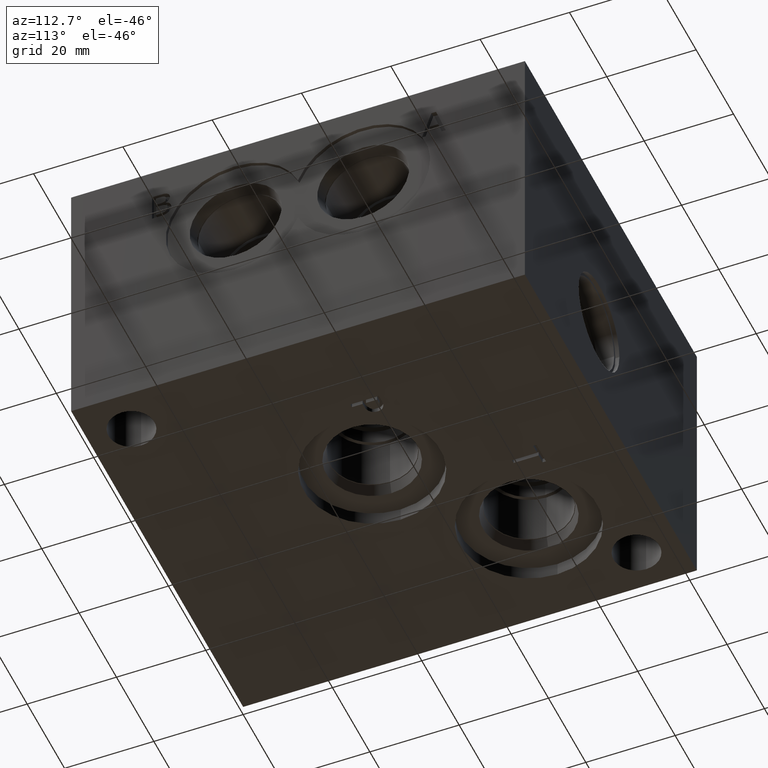
[diagram: clean part render]
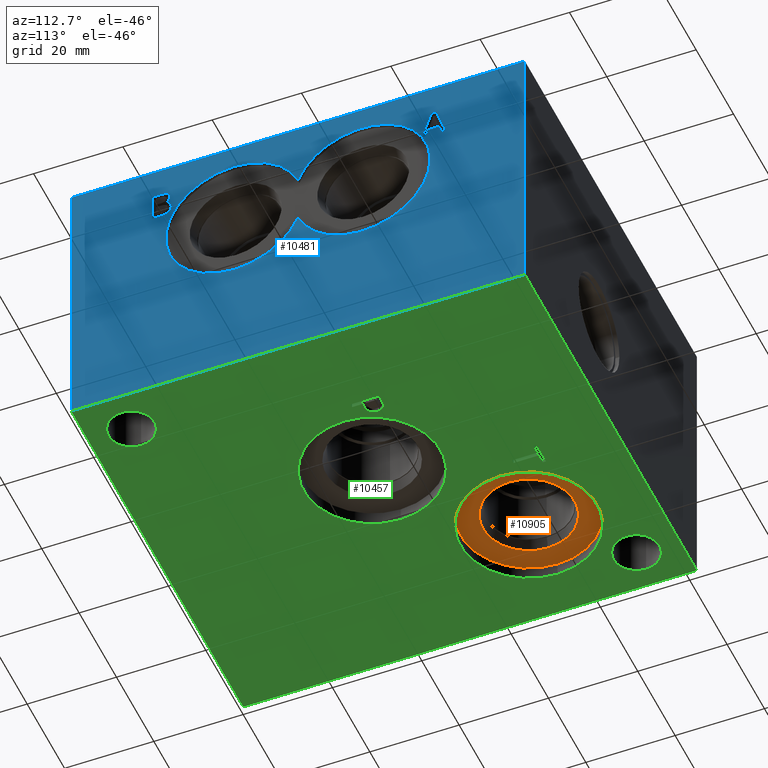
[diagram: same view with three faces highlighted in distinct colors, each labeled with its STEP entity id]
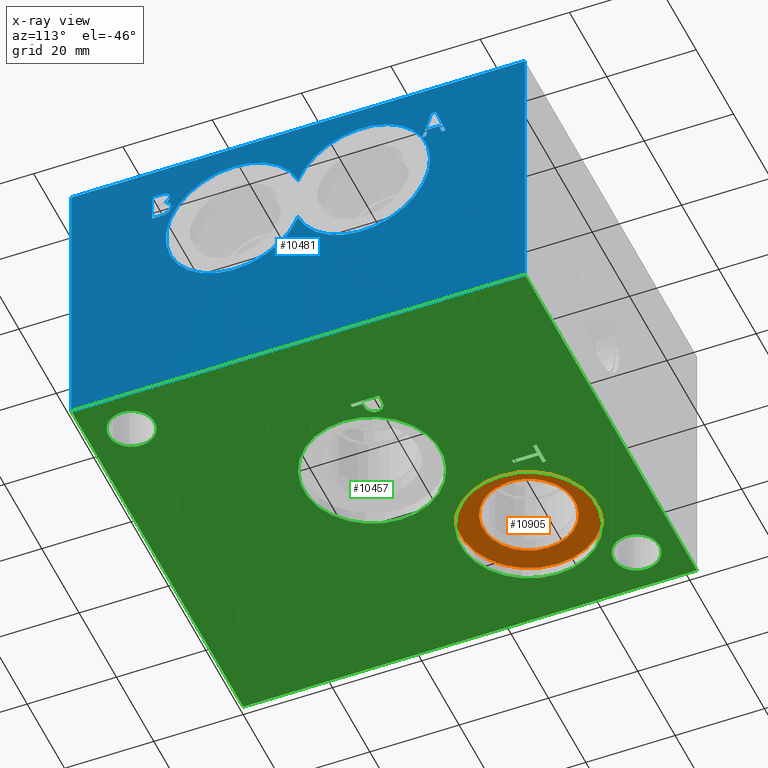
[diagram: x-ray of the same camera — body ghosted, the three highlighted faces saturated]
A machine part, auxiliary view with three faces highlighted in distinct colors.
The next image is the same camera in x-ray (body ghosted, the three faces saturated) — at least one of them is partly hidden behind the body in this view.
Their STEP definitions:

[orange] entity #10905 — the highlighted planar face has unit normal (0, 0, 1).
#120=FACE_BOUND('',#2120,.T.);
#439=PLANE('',#11379);
#1508=FACE_OUTER_BOUND('',#2119,.T.);
#2119=EDGE_LOOP('',(#9892,#9893));
#2120=EDGE_LOOP('',(#9894,#9895));
#2619=CIRCLE('',#11377,15.3162);
#2620=CIRCLE('',#11378,15.3162);
#2621=CIRCLE('',#11380,10.2997);
#2622=CIRCLE('',#11381,10.2997);
#5646=VERTEX_POINT('',#18600);
#5647=VERTEX_POINT('',#18602);
#5648=VERTEX_POINT('',#18606);
#5649=VERTEX_POINT('',#18607);
#7112=EDGE_CURVE('',#5646,#5647,#2619,.T.);
#7113=EDGE_CURVE('',#5647,#5646,#2620,.T.);
#7114=EDGE_CURVE('',#5648,#5649,#2621,.T.);
#7115=EDGE_CURVE('',#5649,#5648,#2622,.T.);
#9892=ORIENTED_EDGE('',*,*,#7113,.F.);
#9893=ORIENTED_EDGE('',*,*,#7112,.F.);
#9894=ORIENTED_EDGE('',*,*,#7114,.T.);
#9895=ORIENTED_EDGE('',*,*,#7115,.T.);
#10905=ADVANCED_FACE('',(#1508,#120),#439,.F.);
#11377=AXIS2_PLACEMENT_3D('',#18603,#13278,#13279);
#11378=AXIS2_PLACEMENT_3D('',#18604,#13280,#13281);
#11379=AXIS2_PLACEMENT_3D('',#18605,#13282,#13283);
#11380=AXIS2_PLACEMENT_3D('',#18608,#13284,#13285);
#11381=AXIS2_PLACEMENT_3D('',#18609,#13286,#13287);
#13278=DIRECTION('center_axis',(0.,0.,1.));
#13279=DIRECTION('ref_axis',(1.,0.,0.));
#13280=DIRECTION('center_axis',(0.,0.,1.));
#13281=DIRECTION('ref_axis',(1.,0.,0.));
#13282=DIRECTION('center_axis',(0.,0.,1.));
#13283=DIRECTION('ref_axis',(1.,0.,0.));
#13284=DIRECTION('center_axis',(0.,0.,1.));
#13285=DIRECTION('ref_axis',(1.,0.,0.));
#13286=DIRECTION('center_axis',(0.,0.,1.));
#13287=DIRECTION('ref_axis',(1.,0.,0.));
#18600=CARTESIAN_POINT('',(10.0838,74.5998,3.048));
#18602=CARTESIAN_POINT('',(40.7162,74.5998,3.048));
#18603=CARTESIAN_POINT('Origin',(25.4,74.5998,3.048));
#18604=CARTESIAN_POINT('Origin',(25.4,74.5998,3.048));
#18605=CARTESIAN_POINT('Origin',(35.6997,74.5998,3.048));
#18606=CARTESIAN_POINT('',(35.6997,74.5998,3.048));
#18607=CARTESIAN_POINT('',(15.1003,74.5998,3.048));
#18608=CARTESIAN_POINT('Origin',(25.4,74.5998,3.048));
#18609=CARTESIAN_POINT('Origin',(25.4,74.5998,3.048));

[blue] entity #10481 — the highlighted planar face has unit normal (1, 0, 0).
#80=FACE_BOUND('',#1656,.T.);
#81=FACE_BOUND('',#1657,.T.);
#180=PLANE('',#11061);
#1084=FACE_OUTER_BOUND('',#1655,.T.);
#1655=EDGE_LOOP('',(#7560,#7561,#7562,#7563));
#1656=EDGE_LOOP('',(#7564,#7565,#7566,#7567,#7568,#7569,#7570,#7571,#7572,
#7573,#7574));
#1657=EDGE_LOOP('',(#7575,#7576,#7577,#7578,#7579,#7580,#7581,#7582,#7583,
#7584));
#2263=B_SPLINE_CURVE_WITH_KNOTS('',2,(#14242,#14243,#14244,#14245),
 .UNSPECIFIED.,.F.,.F.,(3,1,3),(0.,1.,2.),.UNSPECIFIED.);
#2264=B_SPLINE_CURVE_WITH_KNOTS('',2,(#14247,#14248,#14249,#14250),
 .UNSPECIFIED.,.F.,.F.,(3,1,3),(0.,1.,2.),.UNSPECIFIED.);
#2265=B_SPLINE_CURVE_WITH_KNOTS('',2,(#14252,#14253,#14254,#14255),
 .UNSPECIFIED.,.F.,.F.,(3,1,3),(0.,1.,2.),.UNSPECIFIED.);
#2266=B_SPLINE_CURVE_WITH_KNOTS('',2,(#14263,#14264,#14265,#14266),
 .UNSPECIFIED.,.F.,.F.,(3,1,3),(0.,1.,2.),.UNSPECIFIED.);
#2267=B_SPLINE_CURVE_WITH_KNOTS('',2,(#14268,#14269,#14270,#14271),
 .UNSPECIFIED.,.F.,.F.,(3,1,3),(0.,1.,2.),.UNSPECIFIED.);
#2268=B_SPLINE_CURVE_WITH_KNOTS('',2,(#14273,#14274,#14275,#14276),
 .UNSPECIFIED.,.F.,.F.,(3,1,3),(0.,1.,2.),.UNSPECIFIED.);
#2579=CIRCLE('',#11057,15.3162);
#2580=CIRCLE('',#11059,15.3162);
#2582=CIRCLE('',#11062,15.3162);
#2810=LINE('',#14084,#3810);
#2839=LINE('',#14157,#3839);
#2852=LINE('',#14183,#3852);
#2855=LINE('',#14189,#3855);
#2858=LINE('',#14195,#3858);
#2861=LINE('',#14201,#3861);
#2864=LINE('',#14207,#3864);
#2867=LINE('',#14213,#3867);
#2870=LINE('',#14218,#3870);
#2874=LINE('',#14235,#3874);
#2875=LINE('',#14237,#3875);
#2876=LINE('',#14238,#3876);
#2877=LINE('',#14257,#3877);
#2878=LINE('',#14259,#3878);
#2879=LINE('',#14261,#3879);
#2880=LINE('',#14277,#3880);
#3810=VECTOR('',#11691,10.);
#3839=VECTOR('',#11752,10.);
#3852=VECTOR('',#11773,10.);
#3855=VECTOR('',#11778,10.);
#3858=VECTOR('',#11783,10.);
#3861=VECTOR('',#11788,10.);
#3864=VECTOR('',#11793,10.);
#3867=VECTOR('',#11798,10.);
#3870=VECTOR('',#11803,10.);
#3874=VECTOR('',#11823,10.);
#3875=VECTOR('',#11824,10.);
#3876=VECTOR('',#11825,10.);
#3877=VECTOR('',#11828,10.);
#3878=VECTOR('',#11829,10.);
#3879=VECTOR('',#11830,10.);
#3880=VECTOR('',#11831,10.);
#4811=VERTEX_POINT('',#14078);
#4813=VERTEX_POINT('',#14082);
#4840=VERTEX_POINT('',#14154);
#4841=VERTEX_POINT('',#14156);
#4849=VERTEX_POINT('',#14180);
#4850=VERTEX_POINT('',#14182);
#4852=VERTEX_POINT('',#14188);
#4854=VERTEX_POINT('',#14194);
#4856=VERTEX_POINT('',#14200);
#4858=VERTEX_POINT('',#14206);
#4860=VERTEX_POINT('',#14212);
#4863=VERTEX_POINT('',#14224);
#4864=VERTEX_POINT('',#14228);
#4866=VERTEX_POINT('',#14234);
#4867=VERTEX_POINT('',#14236);
#4868=VERTEX_POINT('',#14240);
#4869=VERTEX_POINT('',#14241);
#4870=VERTEX_POINT('',#14246);
#4871=VERTEX_POINT('',#14251);
#4872=VERTEX_POINT('',#14256);
#4873=VERTEX_POINT('',#14258);
#4874=VERTEX_POINT('',#14260);
#4875=VERTEX_POINT('',#14262);
#4876=VERTEX_POINT('',#14267);
#4877=VERTEX_POINT('',#14272);
#5868=EDGE_CURVE('',#4811,#4813,#2810,.T.);
#5903=EDGE_CURVE('',#4841,#4840,#2839,.T.);
#5916=EDGE_CURVE('',#4850,#4849,#2852,.T.);
#5919=EDGE_CURVE('',#4852,#4850,#2855,.T.);
#5922=EDGE_CURVE('',#4854,#4852,#2858,.T.);
#5925=EDGE_CURVE('',#4856,#4854,#2861,.T.);
#5928=EDGE_CURVE('',#4858,#4856,#2864,.T.);
#5931=EDGE_CURVE('',#4860,#4858,#2867,.T.);
#5934=EDGE_CURVE('',#4840,#4860,#2870,.T.);
#5938=EDGE_CURVE('',#4849,#4863,#2579,.T.);
#5939=EDGE_CURVE('',#4864,#4841,#2580,.T.);
#5942=EDGE_CURVE('',#4813,#4866,#2874,.T.);
#5943=EDGE_CURVE('',#4867,#4866,#2875,.T.);
#5944=EDGE_CURVE('',#4811,#4867,#2876,.T.);
#5945=EDGE_CURVE('',#4863,#4864,#2582,.T.);
#5946=EDGE_CURVE('',#4868,#4869,#2263,.T.);
#5947=EDGE_CURVE('',#4869,#4870,#2264,.T.);
#5948=EDGE_CURVE('',#4870,#4871,#2265,.T.);
#5949=EDGE_CURVE('',#4871,#4872,#2877,.T.);
#5950=EDGE_CURVE('',#4872,#4873,#2878,.T.);
#5951=EDGE_CURVE('',#4873,#4874,#2879,.T.);
#5952=EDGE_CURVE('',#4874,#4875,#2266,.T.);
#5953=EDGE_CURVE('',#4875,#4876,#2267,.T.);
#5954=EDGE_CURVE('',#4876,#4877,#2268,.T.);
#5955=EDGE_CURVE('',#4877,#4868,#2880,.T.);
#7560=ORIENTED_EDGE('',*,*,#5868,.T.);
#7561=ORIENTED_EDGE('',*,*,#5942,.T.);
#7562=ORIENTED_EDGE('',*,*,#5943,.F.);
#7563=ORIENTED_EDGE('',*,*,#5944,.F.);
#7564=ORIENTED_EDGE('',*,*,#5903,.T.);
#7565=ORIENTED_EDGE('',*,*,#5934,.T.);
#7566=ORIENTED_EDGE('',*,*,#5931,.T.);
#7567=ORIENTED_EDGE('',*,*,#5928,.T.);
#7568=ORIENTED_EDGE('',*,*,#5925,.T.);
#7569=ORIENTED_EDGE('',*,*,#5922,.T.);
#7570=ORIENTED_EDGE('',*,*,#5919,.T.);
#7571=ORIENTED_EDGE('',*,*,#5916,.T.);
#7572=ORIENTED_EDGE('',*,*,#5938,.T.);
#7573=ORIENTED_EDGE('',*,*,#5945,.T.);
#7574=ORIENTED_EDGE('',*,*,#5939,.T.);
#7575=ORIENTED_EDGE('',*,*,#5946,.T.);
#7576=ORIENTED_EDGE('',*,*,#5947,.T.);
#7577=ORIENTED_EDGE('',*,*,#5948,.T.);
#7578=ORIENTED_EDGE('',*,*,#5949,.T.);
#7579=ORIENTED_EDGE('',*,*,#5950,.T.);
#7580=ORIENTED_EDGE('',*,*,#5951,.T.);
#7581=ORIENTED_EDGE('',*,*,#5952,.T.);
#7582=ORIENTED_EDGE('',*,*,#5953,.T.);
#7583=ORIENTED_EDGE('',*,*,#5954,.T.);
#7584=ORIENTED_EDGE('',*,*,#5955,.T.);
#10481=ADVANCED_FACE('',(#1084,#80,#81),#180,.T.);
#11057=AXIS2_PLACEMENT_3D('',#14226,#11812,#11813);
#11059=AXIS2_PLACEMENT_3D('',#14229,#11816,#11817);
#11061=AXIS2_PLACEMENT_3D('',#14233,#11821,#11822);
#11062=AXIS2_PLACEMENT_3D('',#14239,#11826,#11827);
#11691=DIRECTION('',(0.,1.,0.));
#11752=DIRECTION('',(0.,0.319451166674567,0.947602739606771));
#11773=DIRECTION('',(0.,-1.,0.));
#11778=DIRECTION('',(0.,-0.308774363938379,-0.951135317488763));
#11783=DIRECTION('',(0.,-1.,0.));
#11788=DIRECTION('',(0.,-0.308774363938375,0.951135317488764));
#11793=DIRECTION('',(0.,-1.,0.));
#11798=DIRECTION('',(0.,0.319451166674567,-0.947602739606771));
#11803=DIRECTION('',(0.,1.,0.));
#11812=DIRECTION('center_axis',(-1.,0.,0.));
#11813=DIRECTION('ref_axis',(0.,0.,-1.));
#11816=DIRECTION('center_axis',(-1.,0.,0.));
#11817=DIRECTION('ref_axis',(0.,0.,-1.));
#11821=DIRECTION('center_axis',(1.,0.,0.));
#11822=DIRECTION('ref_axis',(0.,1.,0.));
#11823=DIRECTION('',(0.,0.,1.));
#11824=DIRECTION('',(0.,1.,0.));
#11825=DIRECTION('',(0.,0.,1.));
#11826=DIRECTION('center_axis',(-1.,0.,0.));
#11827=DIRECTION('ref_axis',(0.,0.,-1.));
#11828=DIRECTION('',(0.,-1.,0.));
#11829=DIRECTION('',(0.,0.,1.));
#11830=DIRECTION('',(0.,1.,0.));
#11831=DIRECTION('',(0.,0.,-1.));
#14078=CARTESIAN_POINT('',(92.075,0.,0.));
#14082=CARTESIAN_POINT('',(92.075,101.6,0.));
#14084=CARTESIAN_POINT('',(92.075,0.,0.));
#14154=CARTESIAN_POINT('',(92.075,80.6807637448056,56.3562499046326));
#14156=CARTESIAN_POINT('',(92.075,78.5696101686727,50.0938376138923));
#14157=CARTESIAN_POINT('',(92.075,66.9638467196177,15.6671258443397));
#14180=CARTESIAN_POINT('',(92.075,78.6162624704092,50.00625));
#14182=CARTESIAN_POINT('',(92.075,79.39429698941,50.00625));
#14183=CARTESIAN_POINT('',(92.075,39.697148494705,50.00625));
#14188=CARTESIAN_POINT('',(92.075,79.9706340958272,51.7815741224459));
#14189=CARTESIAN_POINT('',(92.075,68.5546027427374,16.6161204008744));
#14194=CARTESIAN_POINT('',(92.075,82.3943374629925,51.7815741224459));
#14195=CARTESIAN_POINT('',(92.075,41.1971687314962,51.7815741224459));
#14200=CARTESIAN_POINT('',(92.075,82.9706745694097,50.00625));
#14201=CARTESIAN_POINT('',(92.075,86.3584686478071,39.5706343120792));
#14206=CARTESIAN_POINT('',(92.075,83.8609095641434,50.00625));
#14207=CARTESIAN_POINT('',(92.075,41.9304547820717,50.00625));
#14212=CARTESIAN_POINT('',(92.075,81.7202288831652,56.3562499046326));
#14213=CARTESIAN_POINT('',(92.075,86.0803722308472,43.4225554550181));
#14218=CARTESIAN_POINT('',(92.075,40.3403818724028,56.3562499046326));
#14224=CARTESIAN_POINT('',(92.075,50.7873,37.3313467574691));
#14226=CARTESIAN_POINT('Origin',(92.075,65.0748,42.8498));
#14228=CARTESIAN_POINT('',(92.075,50.7873,48.3682532425309));
#14229=CARTESIAN_POINT('Origin',(92.075,65.0748,42.8498));
#14233=CARTESIAN_POINT('Origin',(92.075,0.,0.));
#14234=CARTESIAN_POINT('',(92.075,101.6,63.5));
#14235=CARTESIAN_POINT('',(92.075,101.6,0.));
#14236=CARTESIAN_POINT('',(92.075,0.,63.5));
#14237=CARTESIAN_POINT('',(92.075,0.,63.5));
#14238=CARTESIAN_POINT('',(92.075,0.,0.));
#14239=CARTESIAN_POINT('Origin',(92.075,36.4998,42.8498));
#14240=CARTESIAN_POINT('',(92.075,21.2241287927767,53.5363147768055));
#14241=CARTESIAN_POINT('',(92.075,22.4128240747622,51.9565336011797));
#14242=CARTESIAN_POINT('Ctrl Pts',(92.075,21.2241287927767,53.5363147768055));
#14243=CARTESIAN_POINT('Ctrl Pts',(92.075,21.7901741651507,53.381938766158));
#14244=CARTESIAN_POINT('Ctrl Pts',(92.075,22.4128240747622,52.5637459097264));
#14245=CARTESIAN_POINT('Ctrl Pts',(92.075,22.4128240747622,51.9565336011797));
#14246=CARTESIAN_POINT('',(92.075,21.7541530959996,50.5208367021582));
#14247=CARTESIAN_POINT('Ctrl Pts',(92.075,22.4128240747622,51.9565336011797));
#14248=CARTESIAN_POINT('Ctrl Pts',(92.075,22.4128240747622,51.4831138351941));
#14249=CARTESIAN_POINT('Ctrl Pts',(92.075,22.0526133832514,50.757546585151));
#14250=CARTESIAN_POINT('Ctrl Pts',(92.075,21.7541530959996,50.5208367021582));
#14251=CARTESIAN_POINT('',(92.075,19.9273703033379,50.00625));
#14252=CARTESIAN_POINT('Ctrl Pts',(92.075,21.7541530959996,50.5208367021582));
#14253=CARTESIAN_POINT('Ctrl Pts',(92.075,21.3939424044889,50.2429598829928));
#14254=CARTESIAN_POINT('Ctrl Pts',(92.075,20.5757495480573,50.00625));
#14255=CARTESIAN_POINT('Ctrl Pts',(92.075,19.9273703033379,50.00625));
#14256=CARTESIAN_POINT('',(92.075,18.1057333776978,50.00625));
#14257=CARTESIAN_POINT('',(92.075,9.96368515166896,50.00625));
#14258=CARTESIAN_POINT('',(92.075,18.1057333776978,56.3562499046326));
#14259=CARTESIAN_POINT('',(92.075,18.1057333776978,25.003125));
#14260=CARTESIAN_POINT('',(92.075,19.7884318937552,56.3562499046326));
#14261=CARTESIAN_POINT('',(92.075,9.05286668884889,56.3562499046326));
#14262=CARTESIAN_POINT('',(92.075,21.4556928087479,56.0989565535535));
#14263=CARTESIAN_POINT('Ctrl Pts',(92.075,19.7884318937552,56.3562499046326));
#14264=CARTESIAN_POINT('Ctrl Pts',(92.075,20.4676863406041,56.3562499046326));
#14265=CARTESIAN_POINT('Ctrl Pts',(92.075,21.1469407874529,56.2687701652657));
#14266=CARTESIAN_POINT('Ctrl Pts',(92.075,21.4556928087479,56.0989565535535));
#14267=CARTESIAN_POINT('',(92.075,22.1143637875104,54.9256988726327));
#14268=CARTESIAN_POINT('Ctrl Pts',(92.075,21.4556928087479,56.0989565535535));
#14269=CARTESIAN_POINT('Ctrl Pts',(92.075,21.8004658991939,55.9188512077981));
#14270=CARTESIAN_POINT('Ctrl Pts',(92.075,22.1143637875104,55.3270765003161));
#14271=CARTESIAN_POINT('Ctrl Pts',(92.075,22.1143637875104,54.9256988726327));
#14272=CARTESIAN_POINT('',(92.075,21.2241287927767,53.567189978935));
#14273=CARTESIAN_POINT('Ctrl Pts',(92.075,22.1143637875104,54.9256988726327));
#14274=CARTESIAN_POINT('Ctrl Pts',(92.075,22.1143637875104,54.478008441755));
#14275=CARTESIAN_POINT('Ctrl Pts',(92.075,21.6409440215248,53.7678787927767));
#14276=CARTESIAN_POINT('Ctrl Pts',(92.075,21.2241287927767,53.567189978935));
#14277=CARTESIAN_POINT('',(92.075,21.2241287927767,26.7835949894675));

[green] entity #10457 — the highlighted planar face has unit normal (0, 0, 1).
#73=FACE_BOUND('',#1625,.T.);
#74=FACE_BOUND('',#1626,.T.);
#75=FACE_BOUND('',#1627,.T.);
#76=FACE_BOUND('',#1628,.T.);
#77=FACE_BOUND('',#1629,.T.);
#78=FACE_BOUND('',#1630,.T.);
#158=PLANE('',#11027);
#1060=FACE_OUTER_BOUND('',#1624,.T.);
#1624=EDGE_LOOP('',(#7426,#7427,#7428,#7429));
#1625=EDGE_LOOP('',(#7430));
#1626=EDGE_LOOP('',(#7431));
#1627=EDGE_LOOP('',(#7432,#7433));
#1628=EDGE_LOOP('',(#7434,#7435));
#1629=EDGE_LOOP('',(#7436,#7437,#7438,#7439,#7440,#7441,#7442,#7443));
#1630=EDGE_LOOP('',(#7444,#7445,#7446,#7447,#7448,#7449,#7450,#7451,#7452));
#2255=B_SPLINE_CURVE_WITH_KNOTS('',2,(#13979,#13980,#13981,#13982),
 .UNSPECIFIED.,.F.,.F.,(3,1,3),(0.,1.,2.),.UNSPECIFIED.);
#2257=B_SPLINE_CURVE_WITH_KNOTS('',2,(#14000,#14001,#14002,#14003),
 .UNSPECIFIED.,.F.,.F.,(3,1,3),(0.,1.,2.),.UNSPECIFIED.);
#2259=B_SPLINE_CURVE_WITH_KNOTS('',2,(#14049,#14050,#14051,#14052),
 .UNSPECIFIED.,.F.,.F.,(3,1,3),(0.,1.,2.),.UNSPECIFIED.);
#2261=B_SPLINE_CURVE_WITH_KNOTS('',2,(#14067,#14068,#14069,#14070),
 .UNSPECIFIED.,.F.,.F.,(3,1,3),(0.,1.,2.),.UNSPECIFIED.);
#2572=CIRCLE('',#11028,5.1562);
#2573=CIRCLE('',#11029,5.1562);
#2574=CIRCLE('',#11030,15.3162);
#2575=CIRCLE('',#11031,15.3162);
#2576=CIRCLE('',#11032,15.3162);
#2577=CIRCLE('',#11033,15.3162);
#2791=LINE('',#14012,#3791);
#2794=LINE('',#14018,#3794);
#2797=LINE('',#14024,#3797);
#2800=LINE('',#14030,#3800);
#2803=LINE('',#14036,#3803);
#2807=LINE('',#14079,#3807);
#2808=LINE('',#14081,#3808);
#2809=LINE('',#14083,#3809);
#2810=LINE('',#14084,#3810);
#2811=LINE('',#14099,#3811);
#2812=LINE('',#14101,#3812);
#2813=LINE('',#14103,#3813);
#2814=LINE('',#14105,#3814);
#2815=LINE('',#14107,#3815);
#2816=LINE('',#14109,#3816);
#2817=LINE('',#14111,#3817);
#2818=LINE('',#14112,#3818);
#3791=VECTOR('',#11660,10.);
#3794=VECTOR('',#11665,10.);
#3797=VECTOR('',#11670,10.);
#3800=VECTOR('',#11675,10.);
#3803=VECTOR('',#11680,10.);
#3807=VECTOR('',#11688,10.);
#3808=VECTOR('',#11689,10.);
#3809=VECTOR('',#11690,10.);
#3810=VECTOR('',#11691,10.);
#3811=VECTOR('',#11704,10.);
#3812=VECTOR('',#11705,10.);
#3813=VECTOR('',#11706,10.);
#3814=VECTOR('',#11707,10.);
#3815=VECTOR('',#11708,10.);
#3816=VECTOR('',#11709,10.);
#3817=VECTOR('',#11710,10.);
#3818=VECTOR('',#11711,10.);
#4792=VERTEX_POINT('',#13977);
#4793=VERTEX_POINT('',#13978);
#4796=VERTEX_POINT('',#13999);
#4798=VERTEX_POINT('',#14011);
#4800=VERTEX_POINT('',#14017);
#4802=VERTEX_POINT('',#14023);
#4804=VERTEX_POINT('',#14029);
#4806=VERTEX_POINT('',#14035);
#4808=VERTEX_POINT('',#14048);
#4810=VERTEX_POINT('',#14077);
#4811=VERTEX_POINT('',#14078);
#4812=VERTEX_POINT('',#14080);
#4813=VERTEX_POINT('',#14082);
#4814=VERTEX_POINT('',#14085);
#4815=VERTEX_POINT('',#14087);
#4816=VERTEX_POINT('',#14089);
#4817=VERTEX_POINT('',#14090);
#4818=VERTEX_POINT('',#14093);
#4819=VERTEX_POINT('',#14094);
#4820=VERTEX_POINT('',#14097);
#4821=VERTEX_POINT('',#14098);
#4822=VERTEX_POINT('',#14100);
#4823=VERTEX_POINT('',#14102);
#4824=VERTEX_POINT('',#14104);
#4825=VERTEX_POINT('',#14106);
#4826=VERTEX_POINT('',#14108);
#4827=VERTEX_POINT('',#14110);
#5838=EDGE_CURVE('',#4792,#4793,#2255,.T.);
#5842=EDGE_CURVE('',#4796,#4792,#2257,.T.);
#5845=EDGE_CURVE('',#4798,#4796,#2791,.T.);
#5848=EDGE_CURVE('',#4800,#4798,#2794,.T.);
#5851=EDGE_CURVE('',#4802,#4800,#2797,.T.);
#5854=EDGE_CURVE('',#4804,#4802,#2800,.T.);
#5857=EDGE_CURVE('',#4806,#4804,#2803,.T.);
#5860=EDGE_CURVE('',#4808,#4806,#2259,.T.);
#5863=EDGE_CURVE('',#4793,#4808,#2261,.T.);
#5865=EDGE_CURVE('',#4810,#4811,#2807,.T.);
#5866=EDGE_CURVE('',#4812,#4810,#2808,.T.);
#5867=EDGE_CURVE('',#4813,#4812,#2809,.T.);
#5868=EDGE_CURVE('',#4811,#4813,#2810,.T.);
#5869=EDGE_CURVE('',#4814,#4814,#2572,.T.);
#5870=EDGE_CURVE('',#4815,#4815,#2573,.T.);
#5871=EDGE_CURVE('',#4816,#4817,#2574,.T.);
#5872=EDGE_CURVE('',#4817,#4816,#2575,.T.);
#5873=EDGE_CURVE('',#4818,#4819,#2576,.T.);
#5874=EDGE_CURVE('',#4819,#4818,#2577,.T.);
#5875=EDGE_CURVE('',#4820,#4821,#2811,.T.);
#5876=EDGE_CURVE('',#4821,#4822,#2812,.T.);
#5877=EDGE_CURVE('',#4822,#4823,#2813,.T.);
#5878=EDGE_CURVE('',#4823,#4824,#2814,.T.);
#5879=EDGE_CURVE('',#4824,#4825,#2815,.T.);
#5880=EDGE_CURVE('',#4825,#4826,#2816,.T.);
#5881=EDGE_CURVE('',#4826,#4827,#2817,.T.);
#5882=EDGE_CURVE('',#4827,#4820,#2818,.T.);
#7426=ORIENTED_EDGE('',*,*,#5865,.F.);
#7427=ORIENTED_EDGE('',*,*,#5866,.F.);
#7428=ORIENTED_EDGE('',*,*,#5867,.F.);
#7429=ORIENTED_EDGE('',*,*,#5868,.F.);
#7430=ORIENTED_EDGE('',*,*,#5869,.T.);
#7431=ORIENTED_EDGE('',*,*,#5870,.T.);
#7432=ORIENTED_EDGE('',*,*,#5871,.T.);
#7433=ORIENTED_EDGE('',*,*,#5872,.T.);
#7434=ORIENTED_EDGE('',*,*,#5873,.T.);
#7435=ORIENTED_EDGE('',*,*,#5874,.T.);
#7436=ORIENTED_EDGE('',*,*,#5875,.T.);
#7437=ORIENTED_EDGE('',*,*,#5876,.T.);
#7438=ORIENTED_EDGE('',*,*,#5877,.T.);
#7439=ORIENTED_EDGE('',*,*,#5878,.T.);
#7440=ORIENTED_EDGE('',*,*,#5879,.T.);
#7441=ORIENTED_EDGE('',*,*,#5880,.T.);
#7442=ORIENTED_EDGE('',*,*,#5881,.T.);
#7443=ORIENTED_EDGE('',*,*,#5882,.T.);
#7444=ORIENTED_EDGE('',*,*,#5838,.T.);
#7445=ORIENTED_EDGE('',*,*,#5863,.T.);
#7446=ORIENTED_EDGE('',*,*,#5860,.T.);
#7447=ORIENTED_EDGE('',*,*,#5857,.T.);
#7448=ORIENTED_EDGE('',*,*,#5854,.T.);
#7449=ORIENTED_EDGE('',*,*,#5851,.T.);
#7450=ORIENTED_EDGE('',*,*,#5848,.T.);
#7451=ORIENTED_EDGE('',*,*,#5845,.T.);
#7452=ORIENTED_EDGE('',*,*,#5842,.T.);
#10457=ADVANCED_FACE('',(#1060,#73,#74,#75,#76,#77,#78),#158,.F.);
#11027=AXIS2_PLACEMENT_3D('',#14076,#11686,#11687);
#11028=AXIS2_PLACEMENT_3D('',#14086,#11692,#11693);
#11029=AXIS2_PLACEMENT_3D('',#14088,#11694,#11695);
#11030=AXIS2_PLACEMENT_3D('',#14091,#11696,#11697);
#11031=AXIS2_PLACEMENT_3D('',#14092,#11698,#11699);
#11032=AXIS2_PLACEMENT_3D('',#14095,#11700,#11701);
#11033=AXIS2_PLACEMENT_3D('',#14096,#11702,#11703);
#11660=DIRECTION('',(-1.,0.,0.));
#11665=DIRECTION('',(-4.19611858128769E-15,1.,0.));
#11670=DIRECTION('',(1.,0.,0.));
#11675=DIRECTION('',(3.75218139805001E-15,-1.,0.));
#11680=DIRECTION('',(1.,0.,0.));
#11686=DIRECTION('center_axis',(0.,0.,1.));
#11687=DIRECTION('ref_axis',(1.,0.,0.));
#11688=DIRECTION('',(1.,0.,0.));
#11689=DIRECTION('',(0.,-1.,0.));
#11690=DIRECTION('',(-1.,0.,0.));
#11691=DIRECTION('',(0.,1.,0.));
#11692=DIRECTION('center_axis',(0.,0.,1.));
#11693=DIRECTION('ref_axis',(1.,0.,0.));
#11694=DIRECTION('center_axis',(0.,0.,1.));
#11695=DIRECTION('ref_axis',(1.,0.,0.));
#11696=DIRECTION('center_axis',(0.,0.,1.));
#11697=DIRECTION('ref_axis',(1.,0.,0.));
#11698=DIRECTION('center_axis',(0.,0.,1.));
#11699=DIRECTION('ref_axis',(1.,0.,0.));
#11700=DIRECTION('center_axis',(0.,0.,1.));
#11701=DIRECTION('ref_axis',(1.,0.,0.));
#11702=DIRECTION('center_axis',(0.,0.,1.));
#11703=DIRECTION('ref_axis',(1.,0.,0.));
#11704=DIRECTION('',(1.,1.05244112384329E-14,0.));
#11705=DIRECTION('',(-3.17280044688052E-15,1.,0.));
#11706=DIRECTION('',(1.,8.33818088455559E-15,0.));
#11707=DIRECTION('',(-1.18219413911166E-14,1.,0.));
#11708=DIRECTION('',(-1.,-3.47984565141735E-15,0.));
#11709=DIRECTION('',(1.18219413911166E-14,-1.,0.));
#11710=DIRECTION('',(1.,0.,0.));
#11711=DIRECTION('',(3.17280044688052E-15,-1.,0.));
#13977=CARTESIAN_POINT('',(68.3306827976406,59.9287681439707,0.));
#13978=CARTESIAN_POINT('',(67.574240345468,58.4107373726039,0.));
#13979=CARTESIAN_POINT('Ctrl Pts',(68.3306827976406,59.9287681439707,0.));
#13980=CARTESIAN_POINT('Ctrl Pts',(67.9756179731514,59.6869123939564,0.));
#13981=CARTESIAN_POINT('Ctrl Pts',(67.574240345468,58.9407616758269,0.));
#13982=CARTESIAN_POINT('Ctrl Pts',(67.574240345468,58.4107373726039,0.));
#13999=CARTESIAN_POINT('',(69.9927978456117,60.3249999046326,0.));
#14000=CARTESIAN_POINT('Ctrl Pts',(69.9927978456117,60.3249999046326,0.));
#14001=CARTESIAN_POINT('Ctrl Pts',(69.4267524732376,60.3249999046326,0.));
#14002=CARTESIAN_POINT('Ctrl Pts',(68.6342889519139,60.1397486918556,0.));
#14003=CARTESIAN_POINT('Ctrl Pts',(68.3306827976406,59.9287681439707,0.));
#14011=CARTESIAN_POINT('',(71.5880166223022,60.3249999046326,0.));
#14012=CARTESIAN_POINT('',(58.8127583111511,60.3249999046326,0.));
#14017=CARTESIAN_POINT('',(71.5880166223022,53.975,0.));
#14018=CARTESIAN_POINT('',(71.5880166223022,52.3875,0.));
#14023=CARTESIAN_POINT('',(70.7440944307627,53.975,0.));
#14024=CARTESIAN_POINT('',(58.3907972153814,53.975,0.));
#14029=CARTESIAN_POINT('',(70.7440944307627,56.3420988299279,0.));
#14030=CARTESIAN_POINT('',(70.7440944307627,53.571049414964,0.));
#14035=CARTESIAN_POINT('',(70.0288189147628,56.3420988299279,0.));
#14036=CARTESIAN_POINT('',(58.0331594573814,56.3420988299279,0.));
#14048=CARTESIAN_POINT('',(68.1299939837989,57.0007698086904,0.));
#14049=CARTESIAN_POINT('Ctrl Pts',(68.1299939837989,57.0007698086904,0.));
#14050=CARTESIAN_POINT('Ctrl Pts',(68.4593294731802,56.6765801863307,0.));
#14051=CARTESIAN_POINT('Ctrl Pts',(69.3495644679139,56.3420988299279,0.));
#14052=CARTESIAN_POINT('Ctrl Pts',(70.0288189147628,56.3420988299279,0.));
#14067=CARTESIAN_POINT('Ctrl Pts',(67.574240345468,58.4107373726039,0.));
#14068=CARTESIAN_POINT('Ctrl Pts',(67.574240345468,57.9990680108774,0.));
#14069=CARTESIAN_POINT('Ctrl Pts',(67.8675547656982,57.2580631597695,0.));
#14070=CARTESIAN_POINT('Ctrl Pts',(68.1299939837989,57.0007698086904,0.));
#14076=CARTESIAN_POINT('Origin',(46.0375,50.8,0.));
#14077=CARTESIAN_POINT('',(0.,0.,0.));
#14078=CARTESIAN_POINT('',(92.075,0.,0.));
#14079=CARTESIAN_POINT('',(0.,0.,0.));
#14080=CARTESIAN_POINT('',(0.,101.6,0.));
#14081=CARTESIAN_POINT('',(0.,101.6,0.));
#14082=CARTESIAN_POINT('',(92.075,101.6,0.));
#14083=CARTESIAN_POINT('',(92.075,101.6,0.));
#14084=CARTESIAN_POINT('',(92.075,0.,0.));
#14085=CARTESIAN_POINT('',(77.3938,9.525,0.));
#14086=CARTESIAN_POINT('Origin',(82.55,9.525,0.));
#14087=CARTESIAN_POINT('',(4.3688,92.075,0.));
#14088=CARTESIAN_POINT('Origin',(9.525,92.075,0.));
#14089=CARTESIAN_POINT('',(40.7162,74.5998,0.));
#14090=CARTESIAN_POINT('',(10.0838,74.5998,0.));
#14091=CARTESIAN_POINT('Origin',(25.4,74.5998,0.));
#14092=CARTESIAN_POINT('Origin',(25.4,74.5998,0.));
#14093=CARTESIAN_POINT('',(67.691,50.8,0.));
#14094=CARTESIAN_POINT('',(37.0586,50.8,0.));
#14095=CARTESIAN_POINT('Origin',(52.3748,50.8,0.));
#14096=CARTESIAN_POINT('Origin',(52.3748,50.8,0.));
#14097=CARTESIAN_POINT('',(43.068334728547,78.58125,0.));
#14098=CARTESIAN_POINT('',(43.9122569200865,78.58125,0.));
#14099=CARTESIAN_POINT('',(44.5529173642734,78.58125,0.));
#14100=CARTESIAN_POINT('',(43.9122569200865,84.1799533194816,0.));
#14101=CARTESIAN_POINT('',(43.9122569200865,64.690625,0.));
#14102=CARTESIAN_POINT('',(46.0426458670215,84.1799533194816,0.));
#14103=CARTESIAN_POINT('',(44.9748784600431,84.1799533194816,0.));
#14104=CARTESIAN_POINT('',(46.0426458670215,84.9312499046326,0.));
#14105=CARTESIAN_POINT('',(46.0426458670218,67.4899766597408,0.));
#14106=CARTESIAN_POINT('',(40.9379457816119,84.9312499046326,0.));
#14107=CARTESIAN_POINT('',(46.0400729335107,84.9312499046326,0.));
#14108=CARTESIAN_POINT('',(40.9379457816119,84.1799533194816,0.));
#14109=CARTESIAN_POINT('',(40.9379457816121,67.8656249523163,0.));
#14110=CARTESIAN_POINT('',(43.068334728547,84.1799533194816,0.));
#14111=CARTESIAN_POINT('',(43.487722890806,84.1799533194816,0.));
#14112=CARTESIAN_POINT('',(43.068334728547,67.4899766597408,0.));